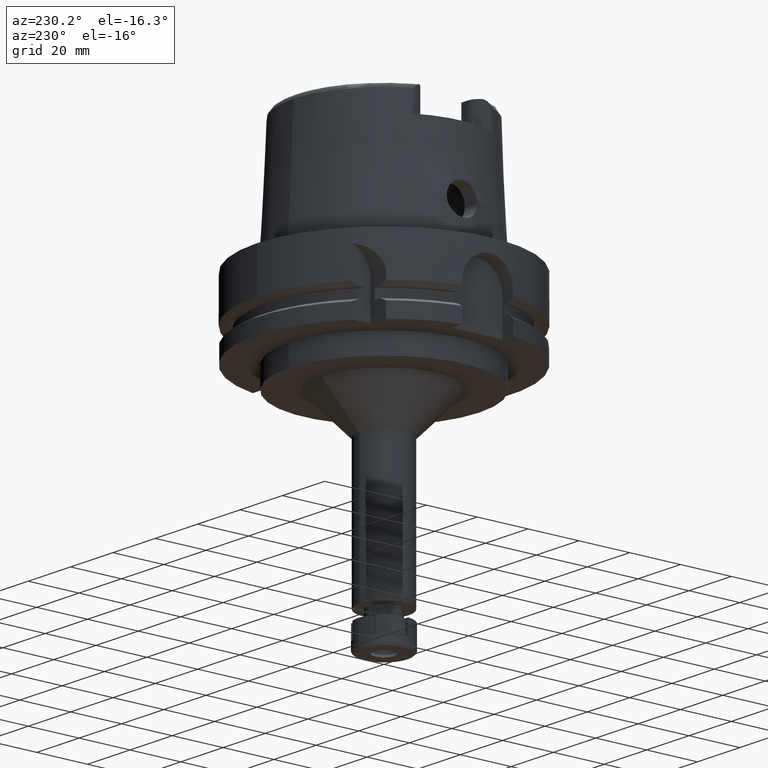
[diagram: clean part render]
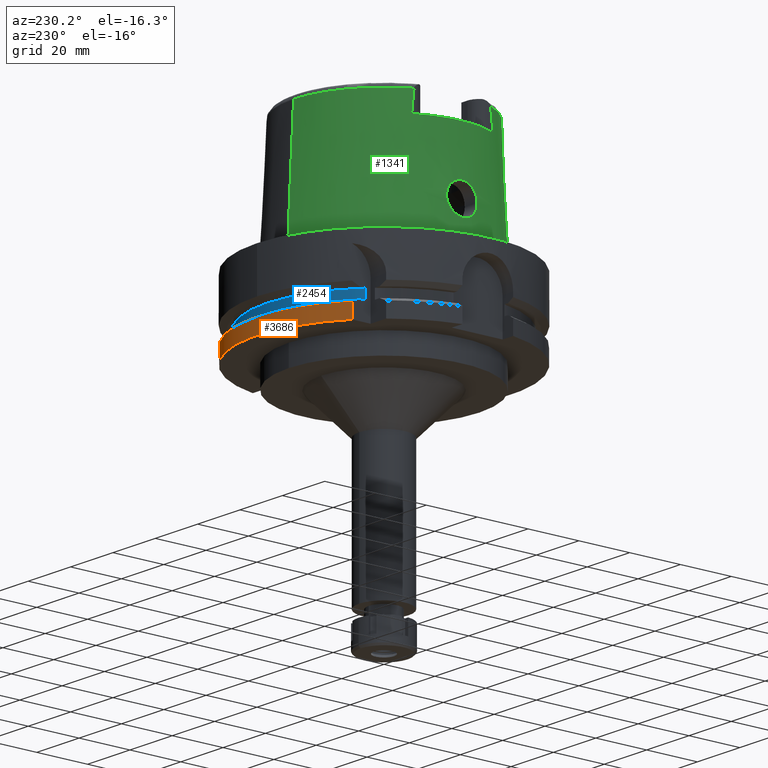
[diagram: same view with three faces highlighted in distinct colors, each labeled with its STEP entity id]
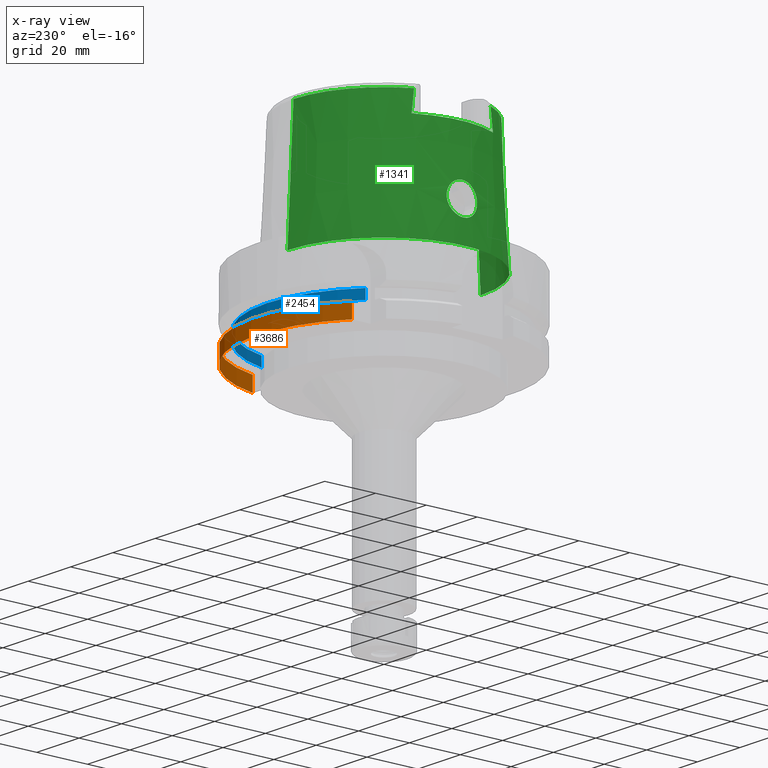
[diagram: x-ray of the same camera — body ghosted, the three highlighted faces saturated]
A machine part, auxiliary view with three faces highlighted in distinct colors.
The next image is the same camera in x-ray (body ghosted, the three faces saturated) — at least one of them is partly hidden behind the body in this view.
Their STEP definitions:

[orange] entity #3686 — the highlighted cylindrical surface (partial cylindrical patch) has radius 50 mm, axis along (0, 0, 1).
#34 = AXIS2_PLACEMENT_3D ( 'NONE', #675, #2073, #180 ) ;
#61 = VECTOR ( 'NONE', #4240, 1000.000000000000000 ) ;
#180 = DIRECTION ( 'NONE',  ( 0.0000000000000000000, 1.000000000000000000, 0.0000000000000000000 ) ) ;
#214 = ORIENTED_EDGE ( 'NONE', *, *, #1109, .F. ) ;
#218 = CIRCLE ( 'NONE', #5895, 50.00000000000000711 ) ;
#338 = EDGE_CURVE ( 'NONE', #2559, #1316, #419, .T. ) ;
#419 = LINE ( 'NONE', #2344, #61 ) ;
#486 = VERTEX_POINT ( 'NONE', #5686 ) ;
#500 = FACE_OUTER_BOUND ( 'NONE', #3979, .T. ) ;
#675 = CARTESIAN_POINT ( 'NONE',  ( 0.0000000000000000000, 0.0000000000000000000, -29.00000000000000000 ) ) ;
#1109 = EDGE_CURVE ( 'NONE', #4850, #486, #1863, .T. ) ;
#1120 = CARTESIAN_POINT ( 'NONE',  ( -31.50000000000000000, 38.82975663071000128, -29.00000000000000000 ) ) ;
#1306 = DIRECTION ( 'NONE',  ( 0.0000000000000000000, 0.0000000000000000000, -1.000000000000000000 ) ) ;
#1316 = VERTEX_POINT ( 'NONE', #1120 ) ;
#1481 = CYLINDRICAL_SURFACE ( 'NONE', #3996, 50.00000000000000000 ) ;
#1614 = ORIENTED_EDGE ( 'NONE', *, *, #338, .F. ) ;
#1766 = VECTOR ( 'NONE', #3263, 1000.000000000000000 ) ;
#1767 = CARTESIAN_POINT ( 'NONE',  ( 48.77499359303000404, 11.00000000000000000, -29.00000000000000000 ) ) ;
#1863 = LINE ( 'NONE', #3619, #1766 ) ;
#1926 = CARTESIAN_POINT ( 'NONE',  ( -31.50000355985999789, 38.82975374283000036, -23.24760820811999906 ) ) ;
#2073 = DIRECTION ( 'NONE',  ( 0.0000000000000000000, 0.0000000000000000000, 1.000000000000000000 ) ) ;
#2333 = CARTESIAN_POINT ( 'NONE',  ( 0.0000000000000000000, 0.0000000000000000000, -123.2500000000000000 ) ) ;
#2344 = CARTESIAN_POINT ( 'NONE',  ( -31.50000355985999789, 38.82975374283000036, -23.24760820811999906 ) ) ;
#2418 = ORIENTED_EDGE ( 'NONE', *, *, #5363, .T. ) ;
#2559 = VERTEX_POINT ( 'NONE', #1926 ) ;
#2746 = EDGE_CURVE ( 'NONE', #4850, #1316, #3029, .T. ) ;
#2831 = DIRECTION ( 'NONE',  ( 0.0000000000000000000, 1.000000000000000000, 0.0000000000000000000 ) ) ;
#3029 = CIRCLE ( 'NONE', #34, 50.00000000000000000 ) ;
#3263 = DIRECTION ( 'NONE',  ( -8.399427413532000465E-14, -2.068976605539000027E-14, 1.000000000000000000 ) ) ;
#3296 = DIRECTION ( 'NONE',  ( 0.0000000000000000000, 0.0000000000000000000, 1.000000000000000000 ) ) ;
#3619 = CARTESIAN_POINT ( 'NONE',  ( 48.77499359303000404, 11.00000000000000000, -29.00000000000000000 ) ) ;
#3686 = ADVANCED_FACE ( 'NONE', ( #500 ), #1481, .T. ) ;
#3979 = EDGE_LOOP ( 'NONE', ( #2418, #214, #5546, #1614 ) ) ;
#3996 = AXIS2_PLACEMENT_3D ( 'NONE', #2333, #3296, #2831 ) ;
#4240 = DIRECTION ( 'NONE',  ( 6.188494047474892859E-07, 5.020316378013912240E-07, -0.9999999999996824762 ) ) ;
#4709 = DIRECTION ( 'NONE',  ( -0.6299999999999789102, 0.7765951326141738997, 0.0000000000000000000 ) ) ;
#4850 = VERTEX_POINT ( 'NONE', #1767 ) ;
#5363 = EDGE_CURVE ( 'NONE', #2559, #486, #218, .T. ) ;
#5546 = ORIENTED_EDGE ( 'NONE', *, *, #2746, .T. ) ;
#5567 = CARTESIAN_POINT ( 'NONE',  ( 0.0000000000000000000, 0.0000000000000000000, -23.24759526419000011 ) ) ;
#5686 = CARTESIAN_POINT ( 'NONE',  ( 48.77499359303000404, 11.00000000000000000, -23.24759526419000011 ) ) ;
#5895 = AXIS2_PLACEMENT_3D ( 'NONE', #5567, #1306, #4709 ) ;

[blue] entity #2454 — the highlighted cylindrical surface (partial cylindrical patch) has radius 46 mm, axis along (0, 0, 1).
#84 = DIRECTION ( 'NONE',  ( 0.0000000000000000000, 1.000000000000000000, 0.0000000000000000000 ) ) ;
#172 = ORIENTED_EDGE ( 'NONE', *, *, #3369, .F. ) ;
#243 = ORIENTED_EDGE ( 'NONE', *, *, #1918, .T. ) ;
#564 = AXIS2_PLACEMENT_3D ( 'NONE', #2467, #1519, #84 ) ;
#658 = LINE ( 'NONE', #1581, #4495 ) ;
#1255 = VERTEX_POINT ( 'NONE', #6078 ) ;
#1324 = CYLINDRICAL_SURFACE ( 'NONE', #1675, 46.00000000000000000 ) ;
#1519 = DIRECTION ( 'NONE',  ( 0.0000000000000000000, 0.0000000000000000000, -1.000000000000000000 ) ) ;
#1581 = CARTESIAN_POINT ( 'NONE',  ( -31.50000000000000000, 33.52238058372000040, -18.12500000000000000 ) ) ;
#1587 = CARTESIAN_POINT ( 'NONE',  ( 44.66542286825000474, 11.00000000000000000, -21.87500000000000000 ) ) ;
#1631 = ORIENTED_EDGE ( 'NONE', *, *, #5467, .T. ) ;
#1675 = AXIS2_PLACEMENT_3D ( 'NONE', #5457, #5990, #5091 ) ;
#1897 = ORIENTED_EDGE ( 'NONE', *, *, #4467, .F. ) ;
#1918 = EDGE_CURVE ( 'NONE', #2910, #2063, #5340, .T. ) ;
#1925 = VECTOR ( 'NONE', #5380, 1000.000000000000000 ) ;
#2063 = VERTEX_POINT ( 'NONE', #3564 ) ;
#2335 = AXIS2_PLACEMENT_3D ( 'NONE', #5781, #4830, #5315 ) ;
#2394 = CARTESIAN_POINT ( 'NONE',  ( -31.50000000000000000, 33.52238058372000040, -21.87500000000000000 ) ) ;
#2454 = ADVANCED_FACE ( 'NONE', ( #3139 ), #1324, .T. ) ;
#2467 = CARTESIAN_POINT ( 'NONE',  ( 0.0000000000000000000, 0.0000000000000000000, -18.12500000000000000 ) ) ;
#2910 = VERTEX_POINT ( 'NONE', #6031 ) ;
#3139 = FACE_OUTER_BOUND ( 'NONE', #5376, .T. ) ;
#3369 = EDGE_CURVE ( 'NONE', #2910, #3675, #658, .T. ) ;
#3477 = DIRECTION ( 'NONE',  ( 0.0000000000000000000, 0.0000000000000000000, -1.000000000000000000 ) ) ;
#3564 = CARTESIAN_POINT ( 'NONE',  ( 44.66542286825000474, 11.00000000000000000, -18.12500000000000000 ) ) ;
#3675 = VERTEX_POINT ( 'NONE', #2394 ) ;
#4467 = EDGE_CURVE ( 'NONE', #1255, #2063, #4948, .T. ) ;
#4495 = VECTOR ( 'NONE', #3477, 1000.000000000000000 ) ;
#4830 = DIRECTION ( 'NONE',  ( 0.0000000000000000000, 0.0000000000000000000, 1.000000000000000000 ) ) ;
#4948 = LINE ( 'NONE', #1587, #1925 ) ;
#5091 = DIRECTION ( 'NONE',  ( 0.0000000000000000000, 1.000000000000000000, 0.0000000000000000000 ) ) ;
#5315 = DIRECTION ( 'NONE',  ( 0.9709874536577099979, 0.2391304347826024856, 0.0000000000000000000 ) ) ;
#5340 = CIRCLE ( 'NONE', #564, 46.00000000000000000 ) ;
#5376 = EDGE_LOOP ( 'NONE', ( #172, #243, #1897, #1631 ) ) ;
#5380 = DIRECTION ( 'NONE',  ( 0.0000000000000000000, 0.0000000000000000000, 1.000000000000000000 ) ) ;
#5457 = CARTESIAN_POINT ( 'NONE',  ( 0.0000000000000000000, 0.0000000000000000000, -123.2500000000000000 ) ) ;
#5467 = EDGE_CURVE ( 'NONE', #1255, #3675, #5494, .T. ) ;
#5494 = CIRCLE ( 'NONE', #2335, 46.00000000000000000 ) ;
#5781 = CARTESIAN_POINT ( 'NONE',  ( 0.0000000000000000000, 0.0000000000000000000, -21.87500000000000000 ) ) ;
#5990 = DIRECTION ( 'NONE',  ( 0.0000000000000000000, 0.0000000000000000000, 1.000000000000000000 ) ) ;
#6031 = CARTESIAN_POINT ( 'NONE',  ( -31.50000000000000000, 33.52238058372000040, -18.12500000000000000 ) ) ;
#6078 = CARTESIAN_POINT ( 'NONE',  ( 44.66542286825000474, 11.00000000000000000, -21.87500000000000000 ) ) ;

[green] entity #1341 — the highlighted conical surface has half-angle 2.862 deg.
#62 = CARTESIAN_POINT ( 'NONE',  ( -36.73722292166759473, 5.139122419465413927, 18.10284632050891673 ) ) ;
#89 = CARTESIAN_POINT ( 'NONE',  ( -36.72000994371307314, 5.514537758706523185, 17.36446303766362576 ) ) ;
#116 = CARTESIAN_POINT ( 'NONE',  ( -36.86924309536954780, 5.814841206155737297, 13.50703738480586047 ) ) ;
#146 = CARTESIAN_POINT ( 'NONE',  ( -36.73222893130312627, 5.952874909746819654, 15.77484518819994719 ) ) ;
#174 = CARTESIAN_POINT ( 'NONE',  ( -36.72708791928210559, 5.924778745280134373, 15.96704758493454968 ) ) ;
#198 = CARTESIAN_POINT ( 'NONE',  ( -37.06890044231478498, 5.053380251106526444, 11.76507643900574607 ) ) ;
#211 = EDGE_CURVE ( 'NONE', #2708, #4896, #3737, .T. ) ;
#233 = CARTESIAN_POINT ( 'NONE',  ( -36.78118228362513520, 6.000609489811516539, 14.65177854336514329 ) ) ;
#302 = CARTESIAN_POINT ( 'NONE',  ( -37.10944655762289557, -4.860248371977283988, 11.48038326740354975 ) ) ;
#332 = EDGE_CURVE ( 'NONE', #1628, #1824, #5723, .T. ) ;
#339 = CARTESIAN_POINT ( 'NONE',  ( -36.87054506520811259, -5.816913810056590250, 13.47724726438794463 ) ) ;
#342 = VERTEX_POINT ( 'NONE', #2840 ) ;
#344 = ORIENTED_EDGE ( 'NONE', *, *, #990, .F. ) ;
#354 = AXIS2_PLACEMENT_3D ( 'NONE', #4730, #2202, #5588 ) ;
#368 = CARTESIAN_POINT ( 'NONE',  ( -36.78360340558934638, -4.403581284934332984, 19.07604045266921844 ) ) ;
#394 = CARTESIAN_POINT ( 'NONE',  ( -37.23682543456681771, -4.145628553046800668, 10.66234685165659002 ) ) ;
#426 = CARTESIAN_POINT ( 'NONE',  ( -37.17916668417408488, -4.492156361538364173, 11.01761428908831419 ) ) ;
#460 = CARTESIAN_POINT ( 'NONE',  ( -36.90494556507460544, 2.209813037305829564, 20.57834535324946401 ) ) ;
#487 = CARTESIAN_POINT ( 'NONE',  ( -36.79590899610428067, 4.215325703864390761, 19.26979866844263967 ) ) ;
#513 = CARTESIAN_POINT ( 'NONE',  ( -36.94593853085764579, 0.7403435249444298982, 20.96707503645360049 ) ) ;
#525 = DIRECTION ( 'NONE',  ( 0.0000000000000000000, 0.0000000000000000000, 1.000000000000000000 ) ) ;
#551 = CARTESIAN_POINT ( 'NONE',  ( -36.84040257416387476, 3.503118964659051482, 19.87513394126167299 ) ) ;
#579 = CARTESIAN_POINT ( 'NONE',  ( -36.90831755436171591, 2.124299461247113552, 20.61178707458991965 ) ) ;
#606 = CARTESIAN_POINT ( 'NONE',  ( -37.31963249604984867, 3.599484158611978568, 10.18332029893960744 ) ) ;
#653 = CARTESIAN_POINT ( 'NONE',  ( -32.25000000000000000, 15.68473281718626033, 42.78334884867074095 ) ) ;
#666 = CARTESIAN_POINT ( 'NONE',  ( -36.80569846878151452, 5.969057142190374421, 14.27689677977579841 ) ) ;
#683 = CARTESIAN_POINT ( 'NONE',  ( -32.24999999999000266, 15.99793480980999938, 40.00000000000000000 ) ) ;
#693 = CARTESIAN_POINT ( 'NONE',  ( -37.16139404144617941, 4.585218588112731197, 11.12888604155726391 ) ) ;
#701 = CARTESIAN_POINT ( 'NONE',  ( -37.34548893783669143, -3.376816743475965499, 10.03659139717349724 ) ) ;
#753 = CIRCLE ( 'NONE', #4157, 38.00001658251999714 ) ;
#772 = CARTESIAN_POINT ( 'NONE',  ( -36.82327538727783178, -5.928803921479985028, 14.05760963369535510 ) ) ;
#802 = CARTESIAN_POINT ( 'NONE',  ( -36.71886771728334509, -5.552600059133881771, 17.27346815717762851 ) ) ;
#828 = EDGE_CURVE ( 'NONE', #5037, #2681, #4746, .T. ) ;
#838 = CARTESIAN_POINT ( 'NONE',  ( -36.76540455254215090, -5.999948736501475643, 14.96563875769933638 ) ) ;
#855 = CARTESIAN_POINT ( 'NONE',  ( 0.0000000000000000000, 35.59494289391000166, 48.09987853799000135 ) ) ;
#870 = CARTESIAN_POINT ( 'NONE',  ( -36.71773057306489108, -5.806716329874848981, 16.52360200548982050 ) ) ;
#901 = CARTESIAN_POINT ( 'NONE',  ( -36.75585315991406787, -4.838606417550384897, 18.55434324600571117 ) ) ;
#925 = CARTESIAN_POINT ( 'NONE',  ( 0.0000000000000000000, 0.0000000000000000000, 40.00000000000000000 ) ) ;
#933 = CARTESIAN_POINT ( 'NONE',  ( -36.84416883195360271, -3.433644295155979353, 19.92133397633557124 ) ) ;
#990 = EDGE_CURVE ( 'NONE', #5037, #4896, #5592, .T. ) ;
#996 = CARTESIAN_POINT ( 'NONE',  ( -36.88703172971397493, -2.627604561804805172, 20.39568271115039622 ) ) ;
#1025 = CARTESIAN_POINT ( 'NONE',  ( -36.89713342297534382, -2.398013237488830551, 20.50001580480010688 ) ) ;
#1057 = CARTESIAN_POINT ( 'NONE',  ( -36.92875481027511597, 1.513384262552087467, 20.80957763293806195 ) ) ;
#1088 = CARTESIAN_POINT ( 'NONE',  ( -36.94754321770201244, 5.557146769872049141, 12.73766420313644332 ) ) ;
#1118 = CARTESIAN_POINT ( 'NONE',  ( -37.19928383981053344, 4.371341350712338425, 10.88956913262706827 ) ) ;
#1124 = CARTESIAN_POINT ( 'NONE',  ( -37.49303867436073290, -1.799950160802275878, 9.275491015905053871 ) ) ;
#1146 = CARTESIAN_POINT ( 'NONE',  ( -37.04831414719454585, 5.147558520907718815, 11.91690549536774846 ) ) ;
#1153 = CARTESIAN_POINT ( 'NONE',  ( -37.40394187879739718, -2.880780138951229308, 9.722275973343121436 ) ) ;
#1176 = CARTESIAN_POINT ( 'NONE',  ( -37.07381032312505198, 5.030371070821860968, 11.72959217422480549 ) ) ;
#1244 = CARTESIAN_POINT ( 'NONE',  ( -37.32408643673436899, -3.545197265954923793, 10.15461228180174125 ) ) ;
#1279 = CARTESIAN_POINT ( 'NONE',  ( -36.71645757168001012, -5.675618251261108860, 16.95059307024732220 ) ) ;
#1300 = ORIENTED_EDGE ( 'NONE', *, *, #2872, .F. ) ;
#1309 = CARTESIAN_POINT ( 'NONE',  ( -36.71847144100735250, -5.567262887244499581, 17.23737784120420002 ) ) ;
#1337 = CARTESIAN_POINT ( 'NONE',  ( 0.0000000000000000000, 0.0000000000000000000, 48.09987853799000135 ) ) ;
#1341 = ADVANCED_FACE ( 'NONE', ( #3319, #5271 ), #4652, .T. ) ;
#1346 = CARTESIAN_POINT ( 'NONE',  ( -36.79205008872000349, -4.273463601868124684, 19.21161031239073225 ) ) ;
#1371 = DIRECTION ( 'NONE',  ( 0.0000000000000000000, 0.0000000000000000000, -1.000000000000000000 ) ) ;
#1380 = CARTESIAN_POINT ( 'NONE',  ( -37.04023299975369099, -5.183209548672222056, 11.97120743993778547 ) ) ;
#1404 = CARTESIAN_POINT ( 'NONE',  ( -36.85909542513982018, 3.172162833115082847, 20.09341607092655835 ) ) ;
#1469 = CARTESIAN_POINT ( 'NONE',  ( -36.85852701734130221, -3.191912767968029918, 20.08423621509178858 ) ) ;
#1485 = EDGE_CURVE ( 'NONE', #1768, #2511, #753, .T. ) ;
#1496 = CARTESIAN_POINT ( 'NONE',  ( -36.72426291791327913, 5.401200711281758160, 17.61435827027595380 ) ) ;
#1506 = ORIENTED_EDGE ( 'NONE', *, *, #3288, .T. ) ;
#1526 = CARTESIAN_POINT ( 'NONE',  ( -36.94998175922999195, 0.3625410392796745152, 20.99999999999999289 ) ) ;
#1557 = CARTESIAN_POINT ( 'NONE',  ( -37.03010952247323218, 5.228351375380992927, 12.05455203777002815 ) ) ;
#1586 = CARTESIAN_POINT ( 'NONE',  ( -36.93007386577033202, 5.619649117435373320, 12.89658849620036740 ) ) ;
#1592 = CARTESIAN_POINT ( 'NONE',  ( -37.55000165825000380, 1.571614468376999917E-13, 9.000000000000000000 ) ) ;
#1617 = CARTESIAN_POINT ( 'NONE',  ( -37.37903586831339453, 3.101492599810109052, 9.859969256804038906 ) ) ;
#1623 = CARTESIAN_POINT ( 'NONE',  ( -37.45922999539777720, -2.266934124351678737, 9.444729183279765294 ) ) ;
#1628 = VERTEX_POINT ( 'NONE', #2651 ) ;
#1642 = DIRECTION ( 'NONE',  ( -5.154182075159067383E-05, 0.04993927430816067631, -0.9987522546783135224 ) ) ;
#1651 = CARTESIAN_POINT ( 'NONE',  ( -37.45411413805285150, 2.329031957148239851, 9.470467895466823549 ) ) ;
#1657 = LINE ( 'NONE', #3578, #3627 ) ;
#1717 = CARTESIAN_POINT ( 'NONE',  ( -37.22674456341983529, -4.208214507322861841, 10.72320401066996531 ) ) ;
#1753 = CARTESIAN_POINT ( 'NONE',  ( -37.25803635577041462, -4.009296551685108234, 10.53584354351435337 ) ) ;
#1768 = VERTEX_POINT ( 'NONE', #2842 ) ;
#1788 = CARTESIAN_POINT ( 'NONE',  ( -36.96386411821902840, -5.496524069674190827, 12.59399549278781016 ) ) ;
#1821 = CARTESIAN_POINT ( 'NONE',  ( -36.78804876010939040, -4.335034252038399316, 19.14836261281662644 ) ) ;
#1824 = VERTEX_POINT ( 'NONE', #6128 ) ;
#1855 = CARTESIAN_POINT ( 'NONE',  ( -36.83926310322212316, -3.515597620567282533, 19.86316136741757532 ) ) ;
#1875 = AXIS2_PLACEMENT_3D ( 'NONE', #3808, #5733, #2387 ) ;
#1888 = CARTESIAN_POINT ( 'NONE',  ( -36.86765578956276102, -3.023642010275575664, 20.18624013531295347 ) ) ;
#1905 = DIRECTION ( 'NONE',  ( -0.8958345712659759874, -0.4443876921390880197, 0.0000000000000000000 ) ) ;
#1944 = CARTESIAN_POINT ( 'NONE',  ( -36.90196743519195621, 2.283055507031206854, 20.54866660078119622 ) ) ;
#1975 = CARTESIAN_POINT ( 'NONE',  ( -36.85109764680451860, 3.315420612339626150, 20.00081925601280375 ) ) ;
#2006 = CARTESIAN_POINT ( 'NONE',  ( -36.71936196964373522, 5.535433661389366655, 17.31497069429664393 ) ) ;
#2035 = CARTESIAN_POINT ( 'NONE',  ( -36.75844862257564216, 5.999121729327355546, 15.10537399460981867 ) ) ;
#2094 = CARTESIAN_POINT ( 'NONE',  ( -37.20951749450830448, 4.311501092979881378, 10.82722813312821231 ) ) ;
#2099 = CARTESIAN_POINT ( 'NONE',  ( -37.46075037883782954, -2.248066608141255696, 9.437065841527100929 ) ) ;
#2110 = VECTOR ( 'NONE', #1642, 1000.000000000000227 ) ;
#2122 = CARTESIAN_POINT ( 'NONE',  ( -37.21390697409419346, 4.285609382220416208, 10.80074951804361127 ) ) ;
#2128 = CARTESIAN_POINT ( 'NONE',  ( -37.47173689184381828, -2.107211573105596703, 9.381806780387046629 ) ) ;
#2153 = CARTESIAN_POINT ( 'NONE',  ( -37.51912641351382405, 1.534274430007508627, 9.142223952304172840 ) ) ;
#2202 = DIRECTION ( 'NONE',  ( 0.0000000000000000000, 0.0000000000000000000, -1.000000000000000000 ) ) ;
#2221 = CARTESIAN_POINT ( 'NONE',  ( -37.00705124851468497, -5.324584421214926699, 12.23258023771436243 ) ) ;
#2255 = CARTESIAN_POINT ( 'NONE',  ( -36.71865978251542373, -5.560196054992892378, 17.25483020159756009 ) ) ;
#2290 = CARTESIAN_POINT ( 'NONE',  ( -37.06286193491655467, -5.081257145079627335, 11.80335484746021635 ) ) ;
#2317 = CARTESIAN_POINT ( 'NONE',  ( -36.77284820469283488, -4.570468157921930619, 18.88885080754070955 ) ) ;
#2320 = ORIENTED_EDGE ( 'NONE', *, *, #4575, .F. ) ;
#2352 = CARTESIAN_POINT ( 'NONE',  ( -37.14440406356543889, -4.680951370373354514, 11.24521499284638004 ) ) ;
#2372 = DIRECTION ( 'NONE',  ( 0.0000000000000000000, 0.0000000000000000000, -1.000000000000000000 ) ) ;
#2381 = CARTESIAN_POINT ( 'NONE',  ( -36.85030944377079010, 3.329304246468634432, 19.99158138200114365 ) ) ;
#2387 = DIRECTION ( 'NONE',  ( 0.0000000000000000000, -1.000000000000000000, 0.0000000000000000000 ) ) ;
#2409 = CARTESIAN_POINT ( 'NONE',  ( -36.79473451309454646, 4.232806092862354319, 19.25247034544882396 ) ) ;
#2436 = CARTESIAN_POINT ( 'NONE',  ( -36.87024762840261616, 2.963092630668443750, 20.21839490532661543 ) ) ;
#2447 = DIRECTION ( 'NONE',  ( 0.0000000000000000000, 1.000000000000000000, 0.0000000000000000000 ) ) ;
#2452 = ORIENTED_EDGE ( 'NONE', *, *, #211, .T. ) ;
#2474 = CARTESIAN_POINT ( 'NONE',  ( -36.87485676191924711, 2.872814729643456300, 20.26846367244986169 ) ) ;
#2483 = B_SPLINE_CURVE_WITH_KNOTS ( 'NONE', 3,
 ( #5265, #1526, #513, #4279, #1057, #4834, #5662, #579, #460, #2911, #4370, #1944, #2503, #6134, #3798, #2474, #2436, #3770, #1404, #3309, #5204, #1975, #2381, #551, #5127, #4802, #5693, #2885, #4776, #487, #2409, #4305, #5725, #4337, #62, #3867, #5756, #1496, #3400, #5291, #89, #2943, #2006, #5378, #3923, #4398, #174, #146, #5846, #4460, #5351, #2035, #3512, #5941, #233, #666, #3543, #116, #3460, #5440, #5409, #1586, #3980, #2587, #3483, #1088, #5871, #3952, #4012, #4946, #1557, #1146, #5816, #198, #1176, #4887, #5002, #2615, #3082, #693, #2562, #1118, #2094, #2122, #3001, #4969, #3056, #606, #1617, #2535, #4485, #4429, #5464, #4515, #5907, #1651, #4917, #3570, #2153, #4049, #3028 ),
 .UNSPECIFIED., .F., .F.,
 ( 4, 2, 2, 1, 1, 1, 1, 2, 2, 2, 2, 1, 1, 2, 2, 2, 1, 1, 1, 2, 2, 2, 2, 2, 1, 1, 2, 2, 2, 2, 1, 1, 2, 2, 2, 2, 2, 1, 1, 1, 2, 2, 2, 2, 1, 1, 2, 2, 2, 1, 1, 1, 2, 2, 2, 2, 2, 1, 1, 2, 2, 4 ),
 ( 0.0000000000000000000, 0.06249999999999107658, 0.09374999999998655242, 0.1093749999999842071, 0.1171874999999829164, 0.1210937499999823197, 0.1230468749999820283, 0.1240234374999818062, 0.1249999999999815842, 0.1562499999999737432, 0.1718749999999698574, 0.1796874999999679146, 0.1835937499999669431, 0.1855468749999664990, 0.1874999999999660549, 0.2187499999999591438, 0.2343749999999555356, 0.2421874999999534817, 0.2460937499999524825, 0.2480468749999519829, 0.2499999999999514833, 0.3124999999999330536, 0.3437499999999238942, 0.3593749999999190647, 0.3671874999999166223, 0.3710937499999151234, 0.3730468749999146794, 0.3749999999999142353, 0.4374999999999075739, 0.4687499999999041878, 0.4843749999999026890, 0.4921874999999020228, 0.4960937499999016898, 0.4999999999999013567, 0.5624999999998990807, 0.5937499999998978595, 0.6093749999998971933, 0.6171874999998968603, 0.6210937499998968603, 0.6230468749998969713, 0.6240234374998971933, 0.6249999999998973044, 0.6562499999999051870, 0.6718749999999090727, 0.6796874999999109601, 0.6835937499999119593, 0.6855468749999124034, 0.6874999999999129585, 0.7187499999999226175, 0.7343749999999276135, 0.7421874999999299449, 0.7460937499999310552, 0.7480468749999314992, 0.7499999999999319433, 0.8124999999999468203, 0.8437499999999542588, 0.8593749999999580336, 0.8671874999999599209, 0.8710937499999609201, 0.8730468749999614753, 0.8749999999999621414, 1.000000000000000000 ),
 .UNSPECIFIED. ) ;
#2503 = CARTESIAN_POINT ( 'NONE',  ( -36.90165803569574621, 2.290548990494582160, 20.54557582976235253 ) ) ;
#2511 = VERTEX_POINT ( 'NONE', #3103 ) ;
#2535 = CARTESIAN_POINT ( 'NONE',  ( -37.39711486200863533, 2.935867669199548669, 9.764097152361184584 ) ) ;
#2562 = CARTESIAN_POINT ( 'NONE',  ( -37.17885038775861517, 4.488699602039208258, 11.01645287381035487 ) ) ;
#2587 = CARTESIAN_POINT ( 'NONE',  ( -36.94413666822227071, 5.569509945771434545, 12.76821535415124131 ) ) ;
#2593 = CARTESIAN_POINT ( 'NONE',  ( -37.55000165825001091, -0.3718711062278590163, 8.999999999999991118 ) ) ;
#2615 = CARTESIAN_POINT ( 'NONE',  ( -37.10343838504699221, 4.889942414221160938, 11.51754765918544976 ) ) ;
#2651 = CARTESIAN_POINT ( 'NONE',  ( 1.065814103639999922E-14, -35.59494289391000166, 48.09987853799000135 ) ) ;
#2655 = DIRECTION ( 'NONE',  ( 5.154182075151068004E-05, -0.04993927430816067631, -0.9987522546783135224 ) ) ;
#2681 = VERTEX_POINT ( 'NONE', #855 ) ;
#2688 = CARTESIAN_POINT ( 'NONE',  ( -36.80916052216316103, -5.955778464009377160, 14.24879558154289327 ) ) ;
#2708 = VERTEX_POINT ( 'NONE', #4893 ) ;
#2717 = CARTESIAN_POINT ( 'NONE',  ( -36.97185013510473084, -5.466111160233193544, 12.52491365681785318 ) ) ;
#2752 = EDGE_CURVE ( 'NONE', #1628, #2511, #1657, .T. ) ;
#2753 = CARTESIAN_POINT ( 'NONE',  ( -36.71806233106864426, -5.583550161452541793, 17.19660386524888906 ) ) ;
#2783 = CARTESIAN_POINT ( 'NONE',  ( -36.71736552551174526, -5.615316706063670615, 17.11485428494873773 ) ) ;
#2814 = CARTESIAN_POINT ( 'NONE',  ( -36.82496260433609336, -3.751494854949533497, 19.68359386247327336 ) ) ;
#2840 = CARTESIAN_POINT ( 'NONE',  ( -37.55000165825000380, 1.571614468376999917E-13, 9.000000000000000000 ) ) ;
#2842 = CARTESIAN_POINT ( 'NONE',  ( 0.0000000000000000000, 38.00001658251999714, 1.023181539494999863E-12 ) ) ;
#2865 = EDGE_CURVE ( 'NONE', #342, #4193, #3577, .T. ) ;
#2872 = EDGE_CURVE ( 'NONE', #4193, #342, #2483, .T. ) ;
#2885 = CARTESIAN_POINT ( 'NONE',  ( -36.80177916891820189, 4.127100875053149487, 19.35560322869972438 ) ) ;
#2911 = CARTESIAN_POINT ( 'NONE',  ( -36.90321811154637999, 2.252544716890937604, 20.56114612141497133 ) ) ;
#2943 = CARTESIAN_POINT ( 'NONE',  ( -36.71961611477095033, 5.527118323733670735, 17.33475441332535638 ) ) ;
#3001 = CARTESIAN_POINT ( 'NONE',  ( -37.21683409994532354, 4.268293929173912815, 10.78315054556558827 ) ) ;
#3028 = CARTESIAN_POINT ( 'NONE',  ( -37.55000165825000380, 1.571614468376999917E-13, 9.000000000000000000 ) ) ;
#3044 = CARTESIAN_POINT ( 'NONE',  ( -32.25000136840999687, 15.06443227156000120, 48.09991931068999804 ) ) ;
#3056 = CARTESIAN_POINT ( 'NONE',  ( -37.27314172630378408, 3.933331283905479037, 10.44682637429402305 ) ) ;
#3082 = CARTESIAN_POINT ( 'NONE',  ( -37.12655873703537424, 4.772589458430256393, 11.35837934685954309 ) ) ;
#3103 = CARTESIAN_POINT ( 'NONE',  ( 0.0000000000000000000, -38.00001658251999714, 6.892264536873000076E-13 ) ) ;
#3157 = CARTESIAN_POINT ( 'NONE',  ( -37.13277754629576322, -4.742013092065887392, 11.32263300494002145 ) ) ;
#3168 = ORIENTED_EDGE ( 'NONE', *, *, #2865, .F. ) ;
#3192 = CARTESIAN_POINT ( 'NONE',  ( -36.99065078577152832, -5.392383637435846921, 12.36566188418666279 ) ) ;
#3220 = CARTESIAN_POINT ( 'NONE',  ( -37.22843438696563823, -4.197796760780997616, 10.71297823318231757 ) ) ;
#3246 = DIRECTION ( 'NONE',  ( 0.0000000000000000000, -1.000000000000000000, 0.0000000000000000000 ) ) ;
#3253 = CARTESIAN_POINT ( 'NONE',  ( -36.79129764848126882, -4.285033327800780611, 19.19984475910054300 ) ) ;
#3282 = CARTESIAN_POINT ( 'NONE',  ( -36.74480681755804312, -6.000661630698496118, 15.36991500658316845 ) ) ;
#3288 = EDGE_CURVE ( 'NONE', #2681, #1768, #4507, .T. ) ;
#3309 = CARTESIAN_POINT ( 'NONE',  ( -36.85447619367495520, 3.255442155362146650, 20.04019071935952923 ) ) ;
#3319 = FACE_OUTER_BOUND ( 'NONE', #5965, .T. ) ;
#3345 = CARTESIAN_POINT ( 'NONE',  ( -36.89414655739745541, -2.467498021453954582, 20.46954497794542860 ) ) ;
#3377 = CARTESIAN_POINT ( 'NONE',  ( -36.93367697910546354, -1.520422836995664495, 20.86599284856309566 ) ) ;
#3400 = CARTESIAN_POINT ( 'NONE',  ( -36.72203181707779152, 5.457289463605852653, 17.49398301570886005 ) ) ;
#3409 = ORIENTED_EDGE ( 'NONE', *, *, #828, .T. ) ;
#3430 = CARTESIAN_POINT ( 'NONE',  ( -36.90004837009861660, -2.329211368541824534, 20.52950983784724670 ) ) ;
#3460 = CARTESIAN_POINT ( 'NONE',  ( -36.89730507175369212, 5.729063682067959462, 13.21445856037911248 ) ) ;
#3483 = CARTESIAN_POINT ( 'NONE',  ( -36.94617870829340944, 5.562105887772732515, 12.74988409790217325 ) ) ;
#3487 = CARTESIAN_POINT ( 'NONE',  ( -37.54240659373143529, -0.7520771780950055163, 9.034672879848640648 ) ) ;
#3512 = CARTESIAN_POINT ( 'NONE',  ( -36.76074774270905010, 5.999768399084700832, 15.05783043638318475 ) ) ;
#3520 = CARTESIAN_POINT ( 'NONE',  ( -37.43523775630972494, -2.562715889740720510, 9.565711387564570956 ) ) ;
#3543 = CARTESIAN_POINT ( 'NONE',  ( -36.85214758403292734, 5.860981144188279757, 13.70114266144137360 ) ) ;
#3550 = CARTESIAN_POINT ( 'NONE',  ( -37.51962140017572978, -1.323986564654088038, 9.144682202504148094 ) ) ;
#3570 = CARTESIAN_POINT ( 'NONE',  ( -37.45641107264342651, 2.301284561684414864, 9.458858209776712656 ) ) ;
#3577 = B_SPLINE_CURVE_WITH_KNOTS ( 'NONE', 3,
 ( #1592, #2593, #3487, #3550, #5385, #1124, #4924, #2128, #5446, #3986, #2099, #4975, #1623, #3520, #1153, #701, #1244, #5174, #4621, #1753, #3702, #394, #4712, #3220, #1717, #3639, #5637, #426, #2352, #3157, #302, #3602, #2290, #1380, #2221, #3192, #2717, #1788, #4213, #5504, #5045, #339, #772, #2688, #3669, #5538, #5075, #5569, #4588, #4118, #838, #3282, #3739, #4183, #870, #6007, #1279, #2783, #2753, #1309, #2255, #6070, #802, #4248, #4153, #6041, #901, #5112, #2317, #4653, #368, #1821, #5603, #3253, #1346, #5145, #4683, #2814, #6103, #1855, #933, #1469, #1888, #3896, #996, #3345, #1025, #4864, #3430, #3377, #3834, #5786 ),
 .UNSPECIFIED., .F., .F.,
 ( 4, 2, 2, 1, 1, 1, 1, 2, 2, 2, 2, 2, 1, 1, 1, 2, 2, 2, 2, 2, 2, 1, 1, 2, 2, 2, 2, 2, 1, 2, 2, 2, 2, 1, 1, 1, 1, 2, 2, 2, 2, 2, 1, 1, 2, 2, 2, 2, 2, 2, 1, 1, 2, 2, 4 ),
 ( 0.0000000000000000000, 0.06249999999999822364, 0.09374999999999730771, 0.1093749999999968636, 0.1171874999999967248, 0.1210937499999966138, 0.1230468749999964750, 0.1240234374999963779, 0.1249999999999962808, 0.1874999999999849565, 0.2187499999999791833, 0.2343749999999761857, 0.2421874999999745759, 0.2460937499999737710, 0.2480468749999734102, 0.2490234374999731881, 0.2499999999999729661, 0.2812499999999730216, 0.2968749999999731326, 0.3124999999999732436, 0.3437499999999731881, 0.3593749999999732436, 0.3671874999999732436, 0.3710937499999731881, 0.3749999999999731326, 0.4374999999999703570, 0.4687499999999691358, 0.4843749999999686362, 0.4921874999999685807, 0.4960937499999684142, 0.4999999999999682476, 0.5624999999999656941, 0.5937499999999646949, 0.6093749999999642508, 0.6171874999999640288, 0.6210937499999636957, 0.6230468749999635847, 0.6240234374999634737, 0.6249999999999634737, 0.6874999999999700240, 0.7187499999999735767, 0.7343749999999753530, 0.7421874999999762412, 0.7460937499999766853, 0.7480468749999770184, 0.7499999999999772404, 0.7812499999999795719, 0.7968749999999805711, 0.8124999999999815703, 0.8437499999999835687, 0.8593749999999846789, 0.8671874999999852340, 0.8710937499999855671, 0.8749999999999859002, 1.000000000000000000 ),
 .UNSPECIFIED. ) ;
#3578 = CARTESIAN_POINT ( 'NONE',  ( -0.002482252536761000127, -35.59494263424999616, 48.09987853799000135 ) ) ;
#3602 = CARTESIAN_POINT ( 'NONE',  ( -37.09756698916618234, -4.918244365272849805, 11.56193354268978979 ) ) ;
#3627 = VECTOR ( 'NONE', #2655, 1000.000000000000227 ) ;
#3639 = CARTESIAN_POINT ( 'NONE',  ( -37.22576359718021166, -4.214243468842939322, 10.72914646245623871 ) ) ;
#3669 = CARTESIAN_POINT ( 'NONE',  ( -36.79045076578429985, -5.982353312486485386, 14.53058531952143007 ) ) ;
#3702 = CARTESIAN_POINT ( 'NONE',  ( -37.24839194719720581, -4.072366421084589128, 10.59300523039864217 ) ) ;
#3703 = CARTESIAN_POINT ( 'NONE',  ( -36.94998175923000616, 0.0000000000000000000, 21.00000000000000000 ) ) ;
#3737 = CIRCLE ( 'NONE', #4930, 35.99995025243999436 ) ;
#3739 = CARTESIAN_POINT ( 'NONE',  ( -36.73134110757698778, -5.965033733632995272, 15.75592400826978512 ) ) ;
#3770 = CARTESIAN_POINT ( 'NONE',  ( -36.86288726935601545, 3.101907701345213209, 20.13624955038210729 ) ) ;
#3798 = CARTESIAN_POINT ( 'NONE',  ( -36.88779084492590954, 2.610117483542248706, 20.40614303151777520 ) ) ;
#3808 = CARTESIAN_POINT ( 'NONE',  ( 0.0000000000000000000, 0.0000000000000000000, 24.04993926899999934 ) ) ;
#3834 = CARTESIAN_POINT ( 'NONE',  ( -36.94998175923000616, -0.7275599797076045538, 20.99999999999998934 ) ) ;
#3839 = AXIS2_PLACEMENT_3D ( 'NONE', #1337, #1371, #3246 ) ;
#3867 = CARTESIAN_POINT ( 'NONE',  ( -36.73209580033368837, 5.234205923074627620, 17.93881940703186118 ) ) ;
#3896 = CARTESIAN_POINT ( 'NONE',  ( -36.88068392083950187, -2.761274879392587867, 20.32777960104338177 ) ) ;
#3923 = CARTESIAN_POINT ( 'NONE',  ( -36.71465530158203450, 5.697399715228599781, 16.92384892991624668 ) ) ;
#3952 = CARTESIAN_POINT ( 'NONE',  ( -36.96612116832471884, 5.489317702447513270, 12.57206571793936156 ) ) ;
#3980 = CARTESIAN_POINT ( 'NONE',  ( -36.93940497634856968, 5.586544218879475387, 12.81099718409357990 ) ) ;
#3986 = CARTESIAN_POINT ( 'NONE',  ( -37.46215776506087280, -2.230493127099109518, 9.429974902145474402 ) ) ;
#4004 = CARTESIAN_POINT ( 'NONE',  ( 0.002482252536764999965, 35.59494263424999616, 48.09987853799000135 ) ) ;
#4012 = CARTESIAN_POINT ( 'NONE',  ( -36.98568459076019366, 5.414205967530480557, 12.40669495390263677 ) ) ;
#4049 = CARTESIAN_POINT ( 'NONE',  ( -37.55000165825002512, 0.7489931569562850999, 9.000000000000019540 ) ) ;
#4118 = CARTESIAN_POINT ( 'NONE',  ( -36.76651601817638948, -5.999783957770890019, 14.94426244053398456 ) ) ;
#4153 = CARTESIAN_POINT ( 'NONE',  ( -36.73017951006739423, -5.271139484117888685, 17.89270599087000235 ) ) ;
#4157 = AXIS2_PLACEMENT_3D ( 'NONE', #5702, #525, #2447 ) ;
#4183 = CARTESIAN_POINT ( 'NONE',  ( -36.72002313290542475, -5.853536538954113411, 16.33205560114571142 ) ) ;
#4193 = VERTEX_POINT ( 'NONE', #3703 ) ;
#4213 = CARTESIAN_POINT ( 'NONE',  ( -36.95855597470156084, -5.516532389046849616, 12.64023201610197944 ) ) ;
#4248 = CARTESIAN_POINT ( 'NONE',  ( -36.72233254897057719, -5.429504404292158526, 17.57339927456699513 ) ) ;
#4257 = CARTESIAN_POINT ( 'NONE',  ( -32.24999999999000266, 15.99793480980999938, 40.00000000000000000 ) ) ;
#4279 = CARTESIAN_POINT ( 'NONE',  ( -36.93380884574056466, 1.318703647121840516, 20.85658125082083814 ) ) ;
#4305 = CARTESIAN_POINT ( 'NONE',  ( -36.79421655821213477, 4.240493896985393363, 19.24480869401765304 ) ) ;
#4337 = CARTESIAN_POINT ( 'NONE',  ( -36.75583276599925142, 4.819727424502035618, 18.59488048164249108 ) ) ;
#4370 = CARTESIAN_POINT ( 'NONE',  ( -36.90246889027326915, 2.270852076193279334, 20.55367214938538822 ) ) ;
#4398 = CARTESIAN_POINT ( 'NONE',  ( -36.71608903068739949, 5.811561755596865275, 16.54223435608467696 ) ) ;
#4429 = CARTESIAN_POINT ( 'NONE',  ( -37.42939805601579195, 2.609345588510506353, 9.596371357612698105 ) ) ;
#4437 = CARTESIAN_POINT ( 'NONE',  ( -32.25000136840999687, 15.06443227156000120, 48.09991931068999804 ) ) ;
#4460 = CARTESIAN_POINT ( 'NONE',  ( -36.74766733738522362, 5.991483769409616578, 15.34367016263003336 ) ) ;
#4485 = CARTESIAN_POINT ( 'NONE',  ( -37.42165015696262031, 2.690585775622214015, 9.636302806434700940 ) ) ;
#4507 = LINE ( 'NONE', #4004, #2110 ) ;
#4515 = CARTESIAN_POINT ( 'NONE',  ( -37.44570068081529257, 2.428405413938576896, 9.513092111213797608 ) ) ;
#4553 = CARTESIAN_POINT ( 'NONE',  ( -32.24999491821000674, -15.06448486578999990, 48.09973213149999793 ) ) ;
#4565 = B_SPLINE_CURVE_WITH_KNOTS ( 'NONE', 3,
 ( #5137, #4584, #4614, #4553 ),
 .UNSPECIFIED., .F., .F.,
 ( 4, 4 ),
 ( 0.0000000000000000000, 1.000000000000000000 ),
 .UNSPECIFIED. ) ;
#4575 = EDGE_CURVE ( 'NONE', #2708, #1824, #4565, .T. ) ;
#4584 = CARTESIAN_POINT ( 'NONE',  ( -32.25000000000000000, -15.68478779054253636, 42.78313258975911992 ) ) ;
#4588 = CARTESIAN_POINT ( 'NONE',  ( -36.76891606969570603, -5.999191259688807953, 14.89891367484380069 ) ) ;
#4614 = CARTESIAN_POINT ( 'NONE',  ( -32.25000000000000000, -15.37363593531253869, 45.48304330025912634 ) ) ;
#4621 = CARTESIAN_POINT ( 'NONE',  ( -37.27696551277017534, -3.882945577074655930, 10.42448467658311628 ) ) ;
#4652 = CONICAL_SURFACE ( 'NONE', #1875, 36.79747973821000073, 0.04996004983832824653 ) ;
#4653 = CARTESIAN_POINT ( 'NONE',  ( -36.77994903495957857, -4.460158179171910930, 19.01373566185393216 ) ) ;
#4683 = CARTESIAN_POINT ( 'NONE',  ( -36.81087772990920115, -3.979793202844450040, 19.49447511104845177 ) ) ;
#4712 = CARTESIAN_POINT ( 'NONE',  ( -37.23096350259452691, -4.182162233744604940, 10.69768779287569593 ) ) ;
#4730 = CARTESIAN_POINT ( 'NONE',  ( 0.0000000000000000000, 0.0000000000000000000, 48.09987853799000135 ) ) ;
#4746 = CIRCLE ( 'NONE', #354, 35.59494289391000166 ) ;
#4776 = CARTESIAN_POINT ( 'NONE',  ( -36.79767050362838177, 4.189025149174996798, 19.29571047996075350 ) ) ;
#4802 = CARTESIAN_POINT ( 'NONE',  ( -36.81701822666470747, 3.889347126485746209, 19.56975626113030842 ) ) ;
#4834 = CARTESIAN_POINT ( 'NONE',  ( -36.91965754643731401, 1.806389363792662461, 20.72252903148558900 ) ) ;
#4864 = CARTESIAN_POINT ( 'NONE',  ( -36.89911081196362375, -2.351499882306816946, 20.52006246737605366 ) ) ;
#4887 = CARTESIAN_POINT ( 'NONE',  ( -37.07710197313341638, 5.014880680249056866, 11.70588825023833834 ) ) ;
#4893 = CARTESIAN_POINT ( 'NONE',  ( -32.24999876011999334, -15.99794043148000000, 40.00000000000000000 ) ) ;
#4896 = VERTEX_POINT ( 'NONE', #4257 ) ;
#4917 = CARTESIAN_POINT ( 'NONE',  ( -37.45575512165491716, 2.309238145936440834, 9.462172417108590139 ) ) ;
#4924 = CARTESIAN_POINT ( 'NONE',  ( -37.48378218947874529, -1.942184113956019198, 9.321487916195103196 ) ) ;
#4926 = ORIENTED_EDGE ( 'NONE', *, *, #2752, .F. ) ;
#4930 = AXIS2_PLACEMENT_3D ( 'NONE', #925, #2372, #1905 ) ;
#4946 = CARTESIAN_POINT ( 'NONE',  ( -37.01856178230813299, 5.277787555187922308, 12.14436121812602742 ) ) ;
#4959 = CARTESIAN_POINT ( 'NONE',  ( -32.25000000000000000, 15.37357338408959073, 45.48332195223407837 ) ) ;
#4969 = CARTESIAN_POINT ( 'NONE',  ( -37.21809433213368123, 4.260821106236432954, 10.77559456965107643 ) ) ;
#4975 = CARTESIAN_POINT ( 'NONE',  ( -37.45980841282821672, -2.259778471655606857, 9.441813138694762131 ) ) ;
#5002 = CARTESIAN_POINT ( 'NONE',  ( -37.07898264436268221, 5.005989275250588122, 11.69239909250446097 ) ) ;
#5037 = VERTEX_POINT ( 'NONE', #4437 ) ;
#5045 = CARTESIAN_POINT ( 'NONE',  ( -36.90862496061001963, -5.700891152080362012, 13.08102952728507162 ) ) ;
#5075 = CARTESIAN_POINT ( 'NONE',  ( -36.77650099633068237, -5.995452550995000962, 14.76193077261866726 ) ) ;
#5112 = CARTESIAN_POINT ( 'NONE',  ( -36.76839153250538317, -4.640215136615773339, 18.80522935964685516 ) ) ;
#5127 = CARTESIAN_POINT ( 'NONE',  ( -36.83105994507488390, 3.661309470736809679, 19.75747689277240937 ) ) ;
#5137 = CARTESIAN_POINT ( 'NONE',  ( -32.24999876011999334, -15.99794043148000000, 40.00000000000000000 ) ) ;
#5145 = CARTESIAN_POINT ( 'NONE',  ( -36.80166031319189557, -4.125757312250002862, 19.36086998910650792 ) ) ;
#5169 = EDGE_LOOP ( 'NONE', ( #1300, #3168 ) ) ;
#5174 = CARTESIAN_POINT ( 'NONE',  ( -37.28910540390788242, -3.798432359370116806, 10.35419941669466937 ) ) ;
#5204 = CARTESIAN_POINT ( 'NONE',  ( -36.85245464878736499, 3.291395583078639220, 20.01666444798986433 ) ) ;
#5265 = CARTESIAN_POINT ( 'NONE',  ( -36.94998175923000616, 0.0000000000000000000, 21.00000000000000000 ) ) ;
#5271 = FACE_BOUND ( 'NONE', #5169, .T. ) ;
#5291 = CARTESIAN_POINT ( 'NONE',  ( -36.72101715667036359, 5.484423970257640946, 17.43400829883719894 ) ) ;
#5351 = CARTESIAN_POINT ( 'NONE',  ( -36.75506906967973464, 5.997726980697641430, 15.17674875614907037 ) ) ;
#5378 = CARTESIAN_POINT ( 'NONE',  ( -36.71925997121112317, 5.538836800612676470, 17.30682566915625742 ) ) ;
#5385 = CARTESIAN_POINT ( 'NONE',  ( -37.51012756952751914, -1.514863429564854869, 9.190999780410525233 ) ) ;
#5409 = CARTESIAN_POINT ( 'NONE',  ( -36.92230252499328458, 5.646385967690977559, 12.96997284151164109 ) ) ;
#5440 = CARTESIAN_POINT ( 'NONE',  ( -36.90706218211161627, 5.697711470611019458, 13.11669889847131820 ) ) ;
#5446 = CARTESIAN_POINT ( 'NONE',  ( -37.46540272670822702, -2.189449300133675891, 9.413639299905600666 ) ) ;
#5464 = CARTESIAN_POINT ( 'NONE',  ( -37.44037410569833213, 2.488542868552269915, 9.540226550702442410 ) ) ;
#5504 = CARTESIAN_POINT ( 'NONE',  ( -36.95606204980513354, -5.525841382503852373, 12.66209702375029700 ) ) ;
#5538 = CARTESIAN_POINT ( 'NONE',  ( -36.78462460387354582, -5.988898204026846805, 14.62368723800854831 ) ) ;
#5569 = CARTESIAN_POINT ( 'NONE',  ( -36.77259310139009330, -5.997914036632011836, 14.83070052047708565 ) ) ;
#5588 = DIRECTION ( 'NONE',  ( -0.9060276961631030801, 0.4232183996300014628, 0.0000000000000000000 ) ) ;
#5592 = B_SPLINE_CURVE_WITH_KNOTS ( 'NONE', 3,
 ( #3044, #4959, #653, #683 ),
 .UNSPECIFIED., .F., .F.,
 ( 4, 4 ),
 ( 0.0000000000000000000, 1.000000000000000000 ),
 .UNSPECIFIED. ) ;
#5603 = CARTESIAN_POINT ( 'NONE',  ( -36.78999289535769179, -4.305107320951281125, 19.17926519570119481 ) ) ;
#5637 = CARTESIAN_POINT ( 'NONE',  ( -37.20218585631272390, -4.358808917589956700, 10.87208896081301823 ) ) ;
#5662 = CARTESIAN_POINT ( 'NONE',  ( -36.91472986185851113, 1.953133149332286767, 20.67487140383341426 ) ) ;
#5693 = CARTESIAN_POINT ( 'NONE',  ( -36.80999042376546981, 4.001055226058089609, 19.47308896139870527 ) ) ;
#5702 = CARTESIAN_POINT ( 'NONE',  ( 0.0000000000000000000, 0.0000000000000000000, 1.023181539494999863E-12 ) ) ;
#5723 = CIRCLE ( 'NONE', #3839, 35.59494289391000166 ) ;
#5725 = CARTESIAN_POINT ( 'NONE',  ( -36.77254396932689673, 4.561004688139794538, 18.92315173722375476 ) ) ;
#5733 = DIRECTION ( 'NONE',  ( 0.0000000000000000000, 0.0000000000000000000, -1.000000000000000000 ) ) ;
#5756 = CARTESIAN_POINT ( 'NONE',  ( -36.72601935849775856, 5.361381529492049047, 17.69517733800497794 ) ) ;
#5786 = CARTESIAN_POINT ( 'NONE',  ( -36.94998175923000616, 0.0000000000000000000, 21.00000000000000000 ) ) ;
#5816 = CARTESIAN_POINT ( 'NONE',  ( -37.05763721317362780, 5.105502316588887091, 11.84735072634013164 ) ) ;
#5846 = CARTESIAN_POINT ( 'NONE',  ( -36.74215252306883173, 5.980956456823648182, 15.48727410229970047 ) ) ;
#5871 = CARTESIAN_POINT ( 'NONE',  ( -36.94837467874073411, 5.554116614216948022, 12.73023889682626475 ) ) ;
#5907 = CARTESIAN_POINT ( 'NONE',  ( -37.45163248143420986, 2.358762438082933954, 9.483021420465016504 ) ) ;
#5941 = CARTESIAN_POINT ( 'NONE',  ( -36.76198684680426254, 5.999952425754596419, 15.03275858275853949 ) ) ;
#5965 = EDGE_LOOP ( 'NONE', ( #344, #3409, #1506, #5984, #4926, #6102, #2320, #2452 ) ) ;
#5984 = ORIENTED_EDGE ( 'NONE', *, *, #1485, .T. ) ;
#6007 = CARTESIAN_POINT ( 'NONE',  ( -36.71651188087912487, -5.721768852706230923, 16.80864330311224109 ) ) ;
#6041 = CARTESIAN_POINT ( 'NONE',  ( -36.74860310348132231, -4.956388472514944077, 18.38708992531663000 ) ) ;
#6070 = CARTESIAN_POINT ( 'NONE',  ( -36.71878823433794992, -5.555465595662897549, 17.26646010849538015 ) ) ;
#6102 = ORIENTED_EDGE ( 'NONE', *, *, #332, .T. ) ;
#6103 = CARTESIAN_POINT ( 'NONE',  ( -36.82970068737022729, -3.673837725689638845, 19.74475304737566717 ) ) ;
#6128 = CARTESIAN_POINT ( 'NONE',  ( -32.24999491821000674, -15.06448486578999990, 48.09973213149999793 ) ) ;
#6134 = CARTESIAN_POINT ( 'NONE',  ( -36.89522247687264667, 2.445902674840564117, 20.48125393329902266 ) ) ;